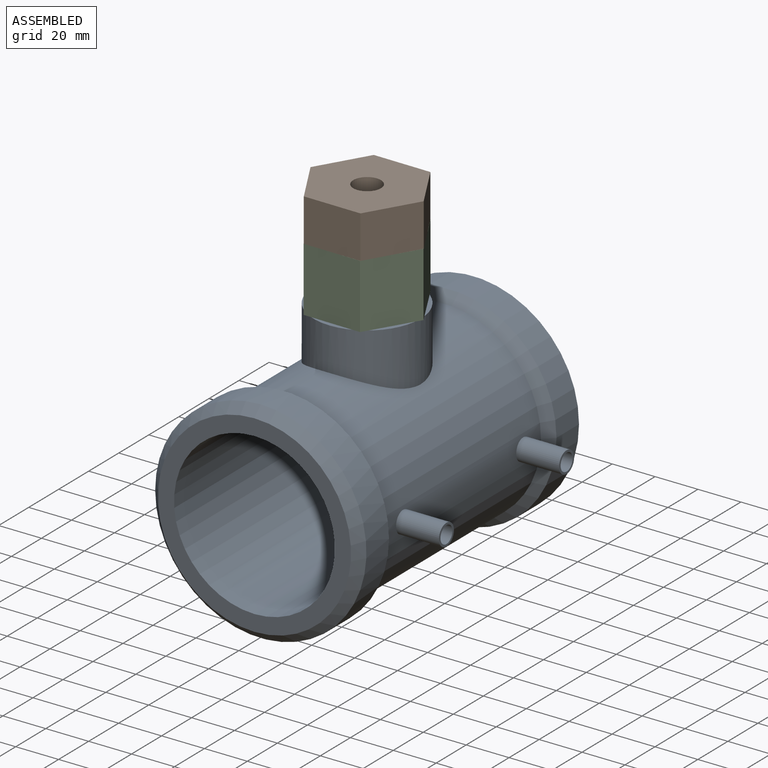
[diagram: assembled view]
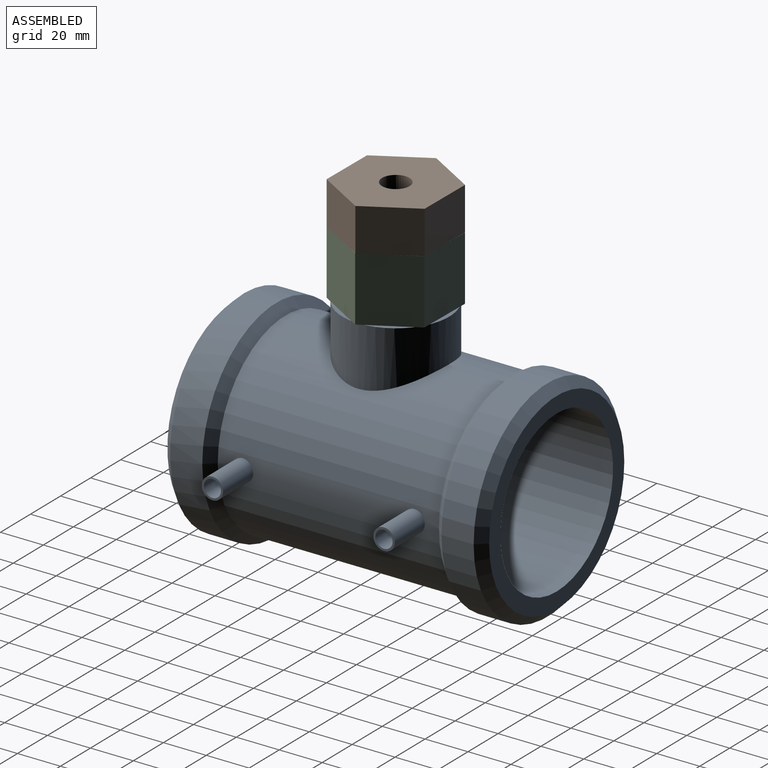
[diagram: assembled view, second angle]
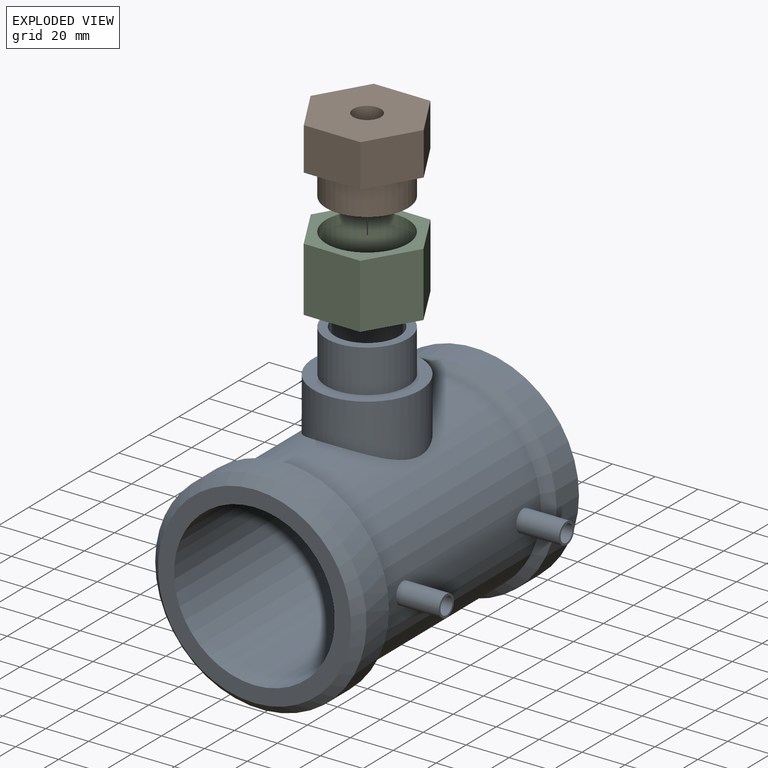
[diagram: exploded view]
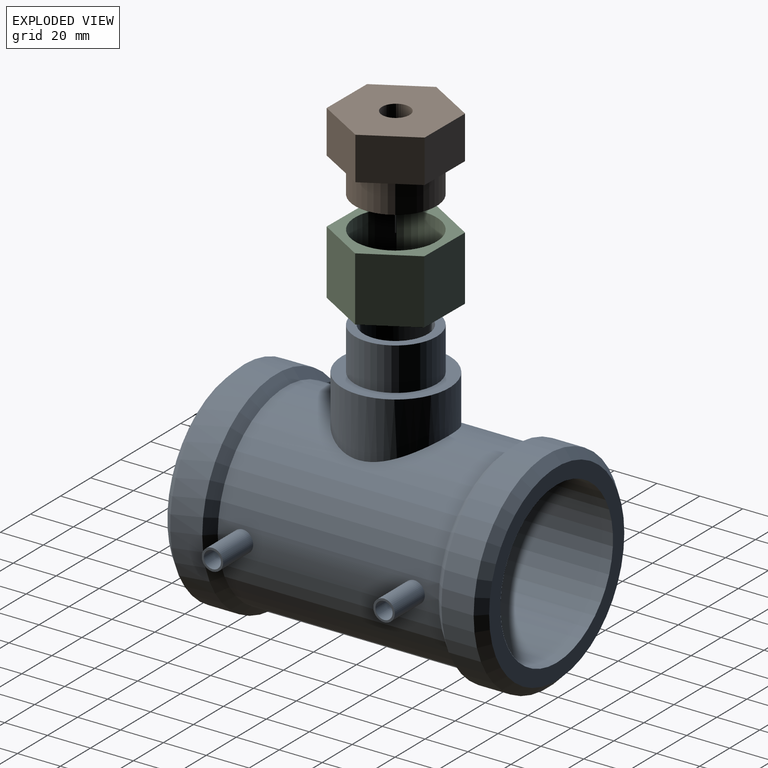
[diagram: exploded view, second angle]
ASSEMBLY  parts=3 mates=4
PART A: 30 faces, bbox 134.2x150x114.2 mm
  f0: cylinder r=25mm len=50mm, axis (-1,0,0), area 3724.1mm2, adj f1,f26
  f1: cylinder r=45mm len=103.03mm, axis (0,1,0), area 26928.2mm2, adj f0,f6,f10,f14,f17
  f2: cylinder r=37.5mm len=150mm, axis (0,1,0), area 35093.4mm2, adj f3,f4,f19,f20,f21,f22,f23,f24
  f3: plane 90x90mm, normal (0,-1,0), area 1943.9mm2, adj f2,f13
  f4: plane 90x90mm, normal (0,1,0), area 1943.9mm2, adj f2,f16
  f5: cylinder r=4mm len=20.18mm, axis (0,0,-1), area 504.9mm2, adj f7,f8
  f6: cylinder r=5mm len=20.28mm, axis (0,0,-1), area 632.7mm2, adj f1,f7
  f7: plane 10x10mm, normal (0,0,1), area 28.3mm2, adj f5,f6
  f8: cylinder r=45mm len=8mm, axis (0,1,0), area 50.3mm2, adj f5
  f9: cylinder r=4mm len=20.18mm, axis (0,0,-1), area 504.9mm2, adj f11,f12
  f10: cylinder r=5mm len=20.28mm, axis (0,0,-1), area 632.7mm2, adj f1,f11
  f11: plane 10x10mm, normal (0,0,1), area 28.3mm2, adj f9,f10
  f12: cylinder r=45mm len=8mm, axis (0,1,0), area 50.3mm2, adj f9
  f13: cone r=45mm half-angle=45deg, axis (0,1,0), area 1776.4mm2, adj f3,f15
  f14: cone r=49.24mm half-angle=45deg, axis (0,-1,0), area 1776.4mm2, adj f1,f15
  f15: cylinder r=49.24mm len=98.49mm, axis (0,-1,0), area 4641mm2, adj f13,f14
  f16: cone r=45mm half-angle=45deg, axis (0,-1,0), area 1776.4mm2, adj f4,f18
  f17: cone r=49.24mm half-angle=45deg, axis (0,1,0), area 1776.4mm2, adj f1,f18
  f18: cylinder r=49.24mm len=98.49mm, axis (0,1,0), area 4641mm2, adj f16,f17
  f19: plane 12.21x11.3mm, normal (-1,0,0), area 124.2mm2, adj f2,f20,f21
  f20: cylinder r=25mm len=12.21mm, axis (-1,0,0), area 4.1mm2, adj f2,f19
  f21: cylinder r=15mm len=12.21mm, axis (-1,0,0), area 4.1mm2, adj f2,f19
  f22: plane 12.21x11.3mm, normal (-1,0,0), area 124.2mm2, adj f2,f23,f24
  f23: cylinder r=25mm len=12.21mm, axis (-1,0,0), area 4.1mm2, adj f2,f22
  f24: cylinder r=15mm len=12.21mm, axis (-1,0,0), area 4.1mm2, adj f2,f22
  f25: cylinder r=19.05mm len=38.1mm, axis (1,0,0), area 2393.9mm2, adj f26,f29
  f26: plane 50x50mm, normal (1,0,0), area 823.4mm2, adj f0,f25
  f27: cylinder r=45mm len=30mm, axis (0,1,0), area 717.9mm2, adj f28
  f28: cylinder r=15mm len=42.57mm, axis (-1,0,0), area 3890.1mm2, adj f27,f29
  f29: plane 38.1x38.1mm, normal (1,0,0), area 433.2mm2, adj f25,f28
PART B: 11 faces, bbox 53.1x46.2x35 mm
  f0: plane 38.1x38.1mm, normal (0,0,-1), area 1009.4mm2, adj f8,f9
  f1: plane 23.12x20mm, normal (-0.87,-0.49,0), area 531.2mm2, adj f2,f6,f7,f10
  f2: plane 26.56x20mm, normal (-0.01,-1,0), area 531.2mm2, adj f1,f3,f7,f10
  f3: plane 22.88x20mm, normal (0.86,-0.51,0), area 531.2mm2, adj f2,f4,f7,f10
  f4: plane 23.12x20mm, normal (0.87,0.49,0), area 531.2mm2, adj f3,f5,f7,f10
  f5: plane 26.56x20mm, normal (0.01,1,0), area 531.2mm2, adj f4,f6,f7,f10
  f6: plane 22.88x20mm, normal (-0.86,0.51,0), area 531.2mm2, adj f1,f5,f7,f10
  f7: plane 53.11x46.25mm, normal (0,0,1), area 1701.8mm2, adj f1,f2,f3,f4,f5,f6,f8
  f8: cylinder r=6.45mm len=35mm, axis (0,0,1), area 1418.4mm2, adj f0,f7
  f9: cylinder r=19.05mm len=38.1mm, axis (0,0,-1), area 1795.4mm2, adj f0,f10
  f10: plane 53.11x46.25mm, normal (0,0,-1), area 692.4mm2, adj f1,f2,f3,f4,f5,f6,f9
PART C: 9 faces, bbox 53.1x46.4x30 mm
  f0: plane 30x23.2mm, normal (-0.87,-0.49,0), area 796.7mm2, adj f1,f5,f6,f7
  f1: plane 30x26.56mm, normal (-0.01,-1,0), area 796.7mm2, adj f0,f2,f6,f7
  f2: plane 30x22.8mm, normal (0.86,-0.51,0), area 796.7mm2, adj f1,f3,f6,f7
  f3: plane 30x23.2mm, normal (0.87,0.49,0), area 796.7mm2, adj f2,f4,f6,f7
  f4: plane 30x26.56mm, normal (0.01,1,0), area 796.7mm2, adj f3,f5,f6,f7
  f5: plane 30x22.8mm, normal (-0.86,0.51,0), area 796.7mm2, adj f0,f4,f6,f7
  f6: plane 53.11x46.39mm, normal (0,0,1), area 692.4mm2, adj f0,f1,f2,f3,f4,f5,f8
  f7: plane 53.11x46.39mm, normal (0,0,-1), area 692.4mm2, adj f0,f1,f2,f3,f4,f5,f8
  f8: cylinder r=19.05mm len=38.1mm, axis (0,0,1), area 3590.8mm2, adj f6,f7
PLACE A rot(axis=(0.71,0,0.71),180deg) t=(1.85,45.66,19.3)mm
PLACE B t=(1.85,45.66,99.3)mm
PLACE C t=(1.85,45.66,84.3)mm
MATE cylindrical B.f8 <-> C.f8  axis (0,0,1) through (1.85,45.66,116.8)mm
MATE parallel C.f8 <-> B.f10  axis (0,0,1) through (1.85,45.66,114.3)mm
MATE cylindrical A.f0 <-> C.f8  axis (0,0,1) through (1.85,45.66,84.3)mm
MATE planar C.f8 <-> A.f0  axis (0,0,-1) through (1.85,45.66,84.3)mm
